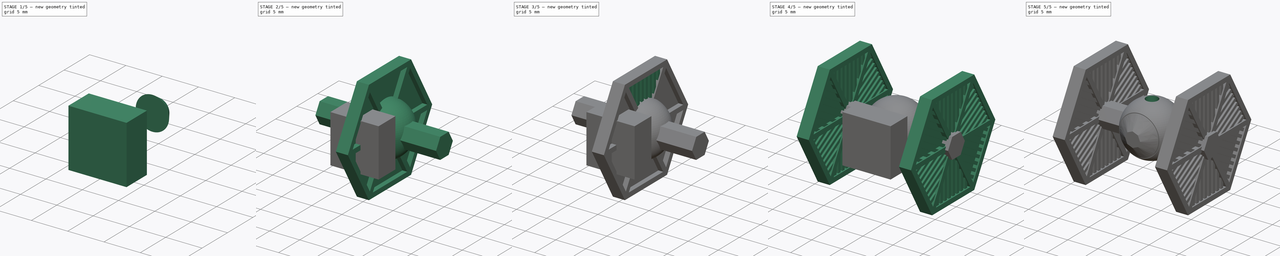
[diagram: build sequence overview — one tinted view per stage of 5, left to right]
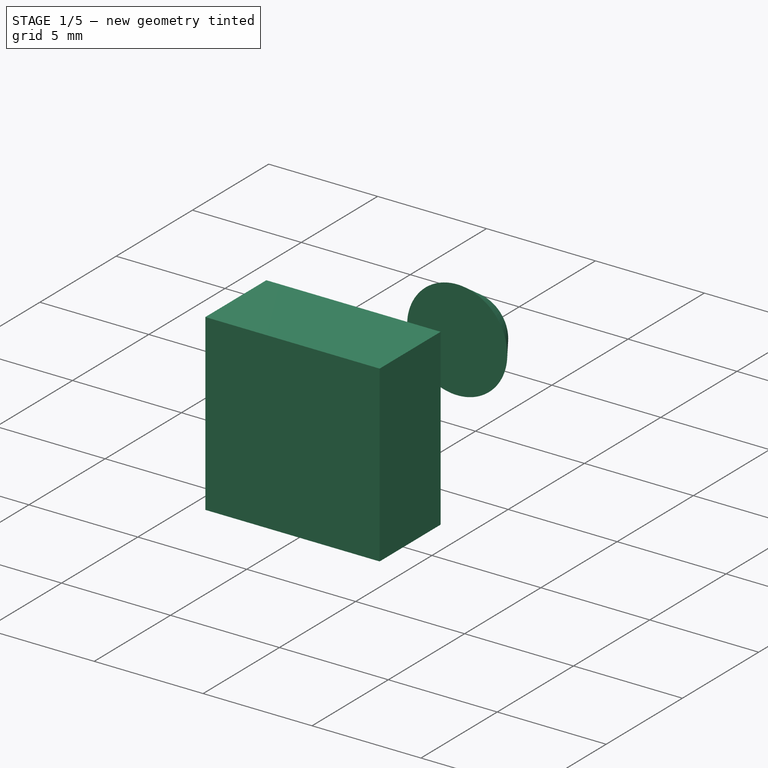
[diagram: stage 1 of 5 — iso view after this stage's code; geometry added in this stage tinted green]
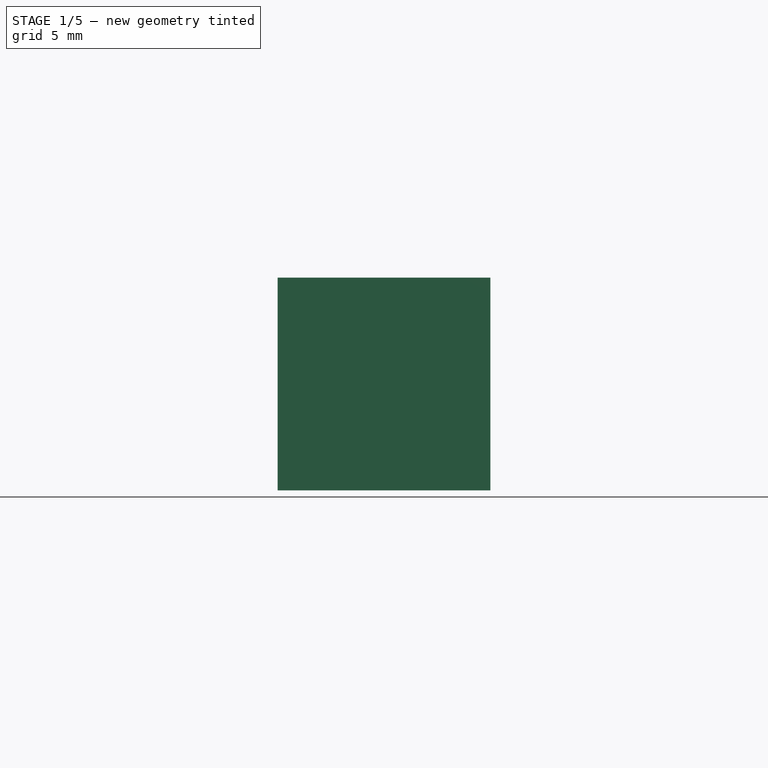
[diagram: stage 1 of 5 — front view after this stage's code; geometry added in this stage tinted green]
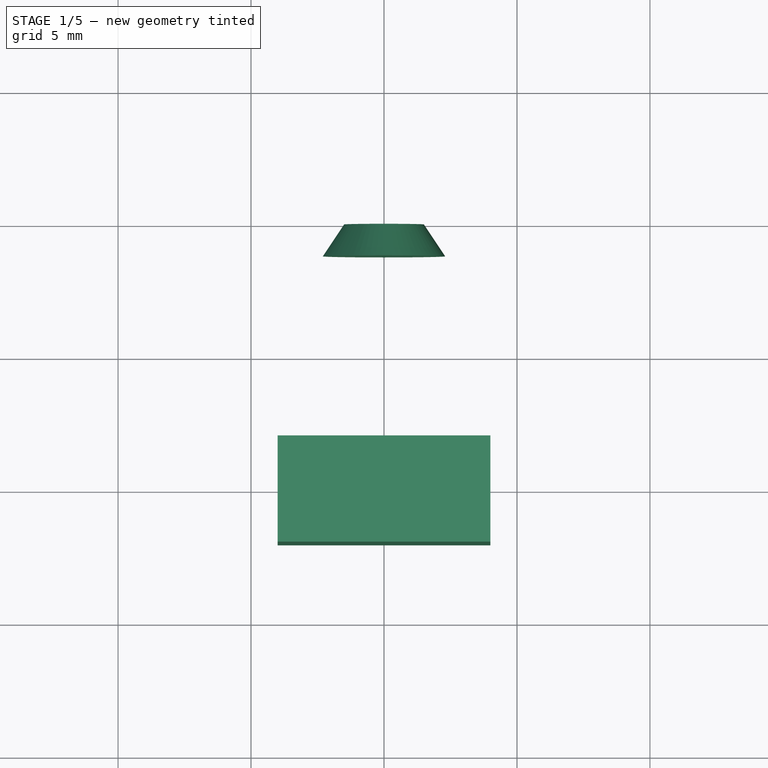
[diagram: stage 1 of 5 — top view after this stage's code; geometry added in this stage tinted green]
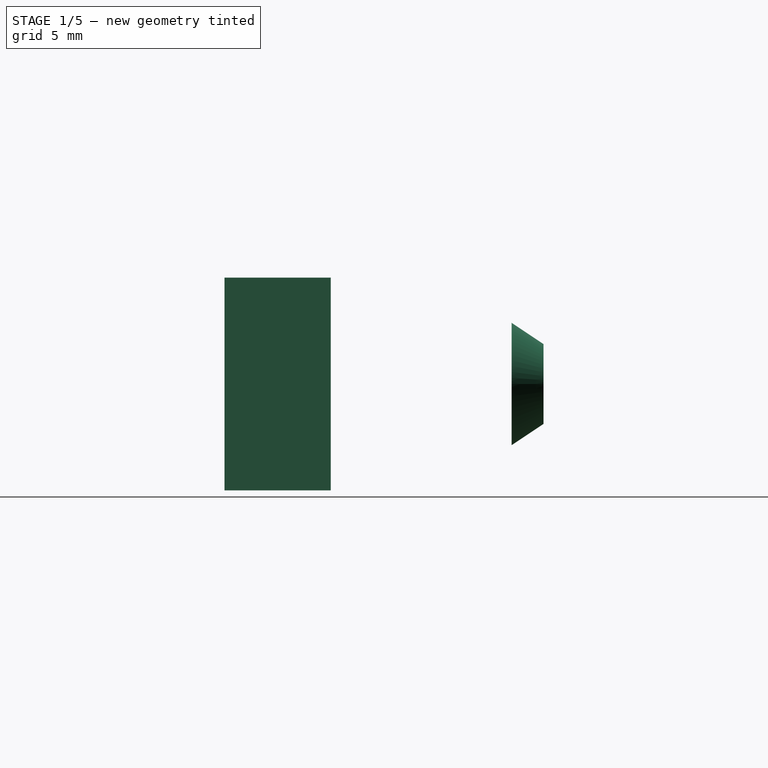
[diagram: stage 1 of 5 — right view after this stage's code; geometry added in this stage tinted green]
FCSTD DOCUMENT  (FreeCAD 0.18R16093 (Git))
Label: IKEA_TIE
License: All rights reserved
LicenseURL: http://en.wikipedia.org/wiki/All_rights_reserved
objects: PartDesign::Body×7, Sketcher::SketchObject×6, PartDesign::FeatureBase×6, Part::MultiFuse×5, Part::Extrusion×4, Part::Cylinder×2, Part::Mirroring×1, Part::Sphere×1, Part::Prism×1, Part::Loft×1, Part::Box×1, Part::Cut×1, Part::Cone×1
note: 37 computed .brp shape members not serialized (recipe doc carries the construction recipe); baked Part::Feature solids carry a one-line shape summary decoded from their .brp

FEATURE [Sketcher::SketchObject] Sketch004
  AttachmentOffset = pos=(0,0,5) rot=(0,0,1;0rad)
  MapMode = 5
  Placement = pos=(0,-5,-1.1e-15) rot=(1,0,0;1.5708rad)
  Support = -> [XZ_Plane]
  sketch-geometry (1):
    g0: Circle CenterX=0 CenterY=0 CenterZ=0 NormalX=0 NormalY=0 NormalZ=1 AngleXU=0 Radius=3.23001
  constraints (1):
    c: Coincident(g0,g-1)
FEATURE [Sketcher::SketchObject] Sketch005
  AttachmentOffset = pos=(0,0,6.5) rot=(0,0,1;0rad)
  MapMode = 5
  Placement = pos=(0,-6.5,-1.4e-15) rot=(1,0,0;1.5708rad)
  Support = -> [XZ_Plane]
  sketch-geometry (9):
    g0: LineSegment StartX=-0.878007 StartY=0.878007 StartZ=0 EndX=-1.24169 EndY=0 EndZ=0
    g1: LineSegment StartX=-1.24169 StartY=0 StartZ=0 EndX=-0.878007 EndY=-0.878007 EndZ=0
    g2: LineSegment StartX=-0.878007 StartY=-0.878007 StartZ=0 EndX=-1e-16 EndY=-1.24169 EndZ=0
    g3: LineSegment StartX=-1e-16 StartY=-1.24169 StartZ=0 EndX=0.878007 EndY=-0.878007 EndZ=0
    g4: LineSegment StartX=0.878007 StartY=-0.878007 StartZ=0 EndX=1.24169 EndY=0 EndZ=0
    g5: LineSegment StartX=1.24169 StartY=0 StartZ=0 EndX=0.878007 EndY=0.878007 EndZ=0
    g6: LineSegment StartX=0.878007 StartY=0.878007 StartZ=0 EndX=0 EndY=1.24169 EndZ=0
    g7: LineSegment StartX=0 StartY=1.24169 StartZ=0 EndX=-0.878007 EndY=0.878007 EndZ=0
    g8: Circle [constr] CenterX=0 CenterY=0 CenterZ=0 NormalX=0 NormalY=0 NormalZ=1 AngleXU=0 Radius=1.24169
  constraints (19):
    c: Coincident(g0,g1)
    c: Coincident(g1,g2)
    c: Coincident(g2,g3)
    c: Coincident(g3,g4)
    c: Coincident(g4,g5)
    c: Coincident(g5,g6)
    c: Coincident(g6,g7)
    c: Coincident(g7,g0)
    c: Equal(g0, g1-g7) x7
    c: PointOnObject(g0,g8)
    c: PointOnObject(g1,g8)
    c: PointOnObject(g2,g8)
    c: PointOnObject(g3,g8)
    c: PointOnObject(g4,g8)
    c: PointOnObject(g5,g8)
    c: PointOnObject(g6,g8)
    c: PointOnObject(g7,g8)
    c: Coincident(g8,g-1)
    c: PointOnObject(g6,g-2)
FEATURE [PartDesign::Body] Body
  Group = -> [Sketch,Sketch001,Sketch002,Sketch003,Sketch004,Sketch005]
  Origin = -> Origin
FEATURE [Part::Loft] Loft
  Closed = false
  MaxDegree = 5
  Ruled = false
  Sections = -> [Sketch004,Sketch005]
  Solid = true
FEATURE [Part::Extrusion] Extrude003
  Base = -> Sketch004
  Dir = (0,-1,-2e-16)
  DirMode = 2
  FaceMakerClass = Part::FaceMakerBullseye
  LengthFwd = 0
  LengthRev = 0.5
  Solid = true
  Symmetric = false
FEATURE [Part::Box] Box  label="Cube"
  AttacherType = Attacher::AttachEngine3D
  Height = 8
  Length = 8
  Placement = pos=(-4,-7,-4) rot=(0,0,1;0rad)
  Width = 4
FEATURE [PartDesign::FeatureBase] Clone005
  BaseFeature = -> Box
  Placement = pos=(-4,-7,-4) rot=(0,0,1;0rad)
FEATURE [Part::Cone] Cone
  Angle = 360
  AttacherType = Attacher::AttachEngine3D
  Height = 1.2
  Placement = pos=(0,5,2e-15) rot=(1,0,0;1.5708rad)
  Radius1 = 1.5
  Radius2 = 2.3
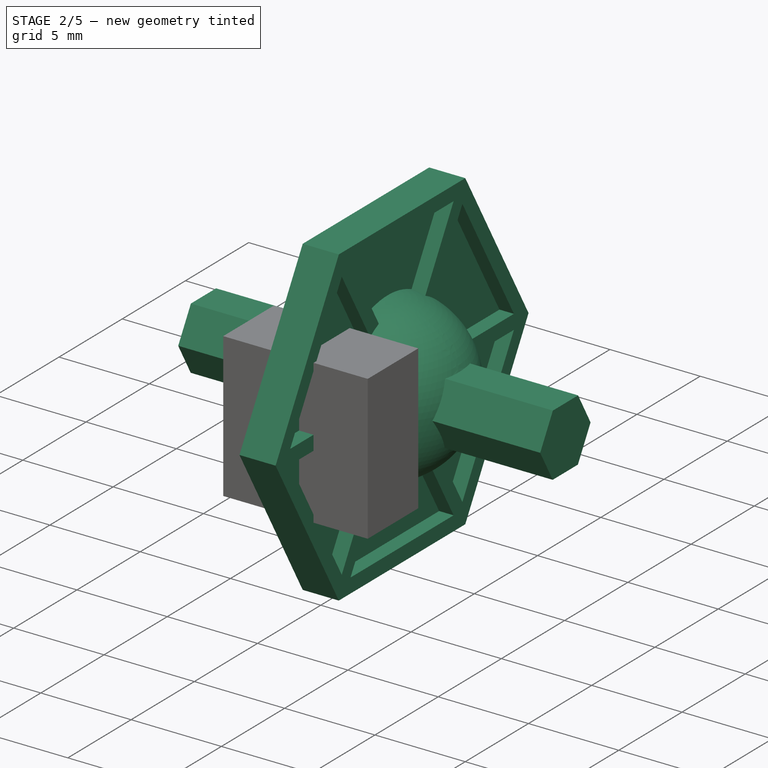
[diagram: stage 2 of 5 — iso view after this stage's code; geometry added in this stage tinted green]
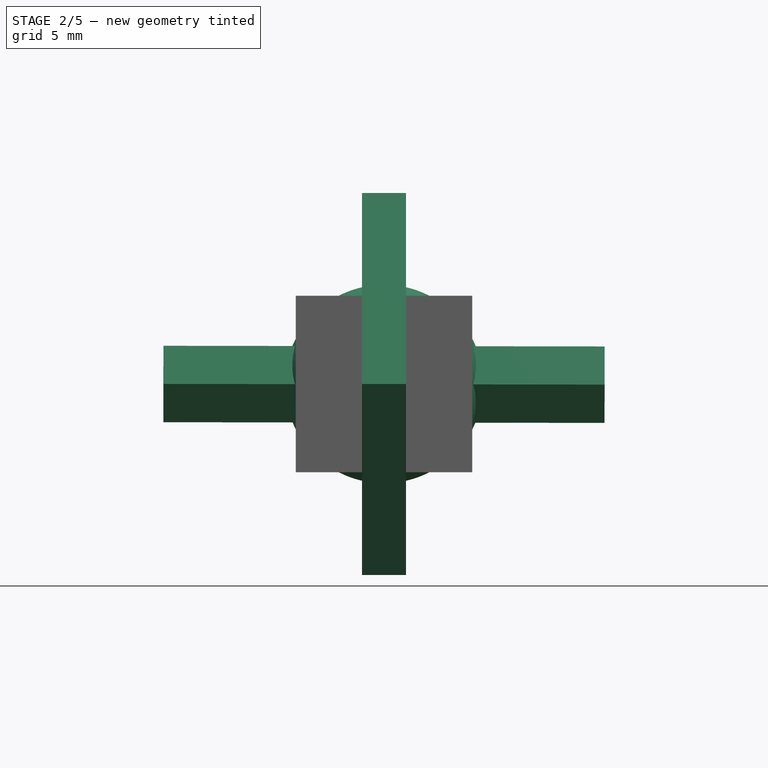
[diagram: stage 2 of 5 — front view after this stage's code; geometry added in this stage tinted green]
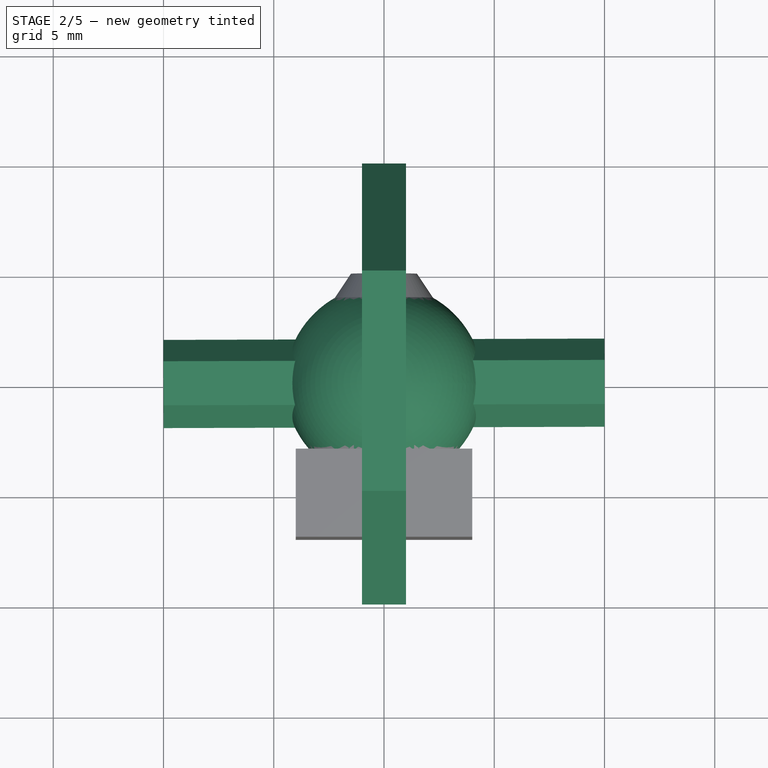
[diagram: stage 2 of 5 — top view after this stage's code; geometry added in this stage tinted green]
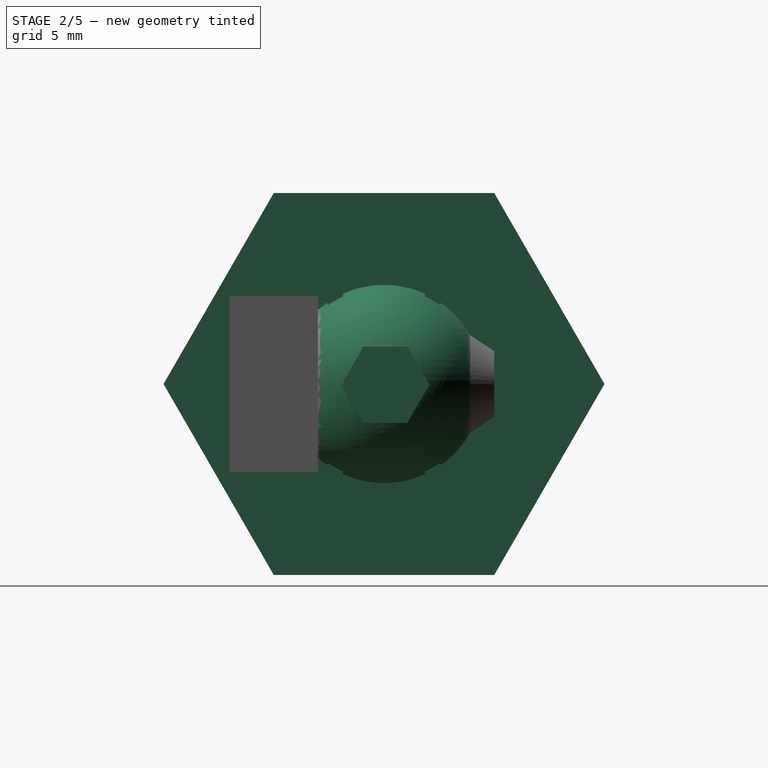
[diagram: stage 2 of 5 — right view after this stage's code; geometry added in this stage tinted green]
FEATURE [PartDesign::Body] Body005
  BaseFeature = -> Extrude
  Group = -> [Clone004]
  Origin = -> Origin005
  Placement = pos=(0,0,0) rot=(-1,0,0;1.0472rad)
  Tip = -> Clone004
FEATURE [Part::Extrusion] Extrude001
  Base = -> Sketch
  Dir = (1,-2e-16,3e-16)
  DirMode = 2
  FaceMakerClass = Part::FaceMakerBullseye
  LengthFwd = 1
  LengthRev = 1
  Solid = true
  Symmetric = false
FEATURE [Sketcher::SketchObject] Sketch003
  ExternalGeometry = -> [Sketch]
  MapMode = 5
  Placement = pos=(0,0,0) rot=(0.57735,0.57735,0.57735;2.0944rad)
  Support = -> [YZ_Plane]
  sketch-geometry (6):
    g0: LineSegment StartX=5 StartY=8.66025 StartZ=0 EndX=10 EndY=0 EndZ=0
    g1: LineSegment StartX=10 StartY=0 StartZ=0 EndX=5 EndY=-8.66025 EndZ=0
    g2: LineSegment StartX=5 StartY=-8.66025 StartZ=0 EndX=-5 EndY=-8.66025 EndZ=0
    g3: LineSegment StartX=-5 StartY=-8.66025 StartZ=0 EndX=-10 EndY=0 EndZ=0
    g4: LineSegment StartX=-10 StartY=0 StartZ=0 EndX=-5 EndY=8.66025 EndZ=0
    g5: LineSegment StartX=-5 StartY=8.66025 StartZ=0 EndX=5 EndY=8.66025 EndZ=0
  constraints (12):
    c: Coincident(g0,g-5)
    c: Coincident(g0,g1)
    c: Coincident(g1,g-6)
    c: Coincident(g1,g2)
    c: Coincident(g2,g-7)
    c: Coincident(g2,g3)
    c: Coincident(g3,g-8)
    c: Coincident(g3,g4)
    c: Coincident(g4,g-8)
    c: Coincident(g4,g5)
    c: Coincident(g5,g0)
    c: Coincident(g0,g-4)
FEATURE [Part::Extrusion] Extrude002
  Base = -> Sketch003
  Dir = (1,-2e-16,3e-16)
  DirMode = 2
  FaceMakerClass = Part::FaceMakerBullseye
  LengthFwd = 0.2
  LengthRev = 0.4
  Solid = true
  Symmetric = false
FEATURE [Part::Sphere] Sphere
  Angle1 = -90
  Angle2 = 90
  Angle3 = 360
  AttacherType = Attacher::AttachEngine3D
  Radius = 4.5
FEATURE [Part::Prism] Prism
  AttacherType = Attacher::AttachEngine3D
  Circumradius = 2
  Height = 20
  Placement = pos=(-10,0,0) rot=(0.579113,-0.576467,0.576467;4.18879rad)
  Polygon = 6
FEATURE [Part::MultiFuse] Fusion003
  Placement = pos=(0,1.9,0) rot=(0,0,1;0rad)
  Shapes = -> [Loft,Extrude003]
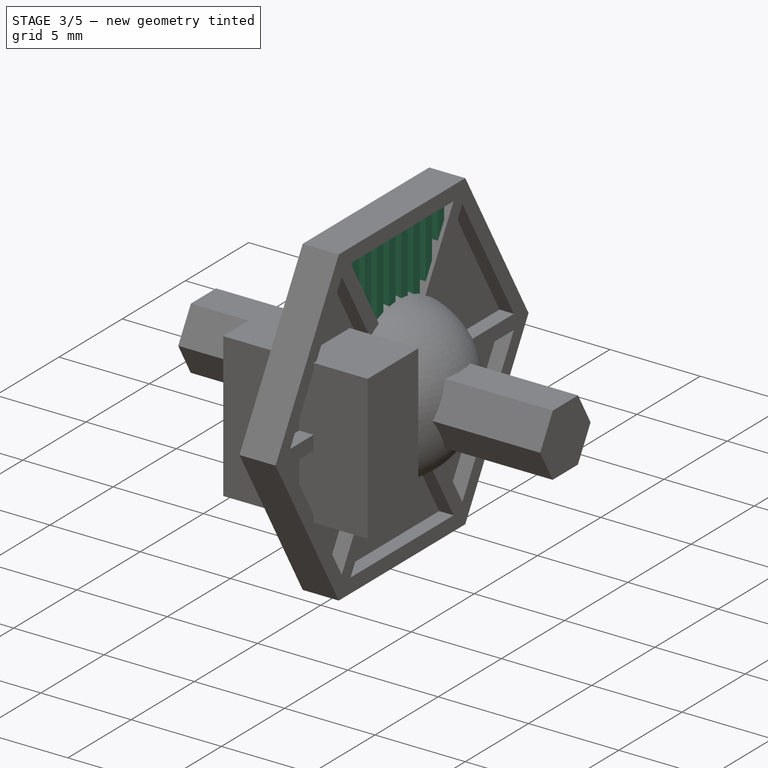
[diagram: stage 3 of 5 — iso view after this stage's code; geometry added in this stage tinted green]
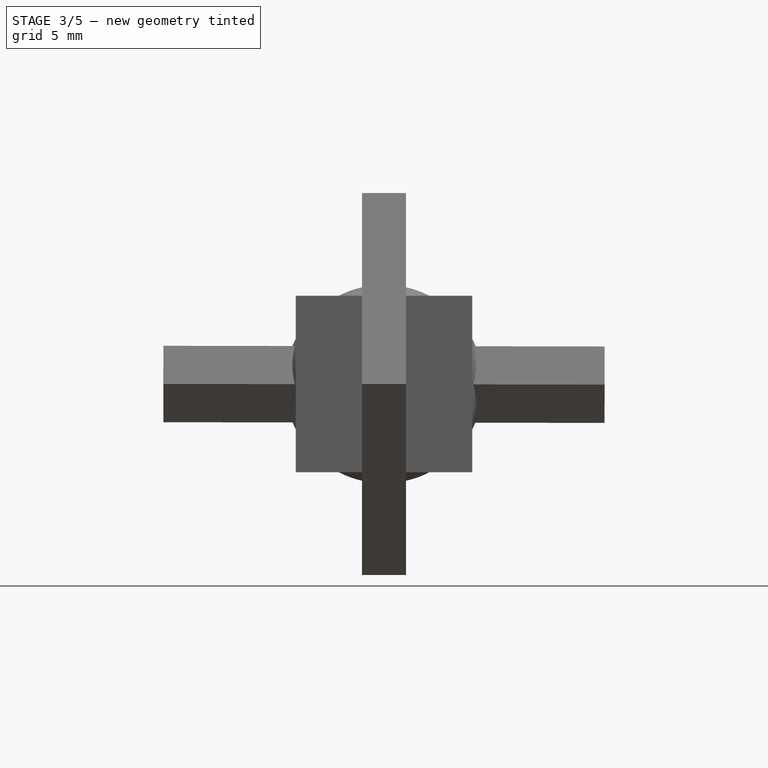
[diagram: stage 3 of 5 — front view after this stage's code; geometry added in this stage tinted green]
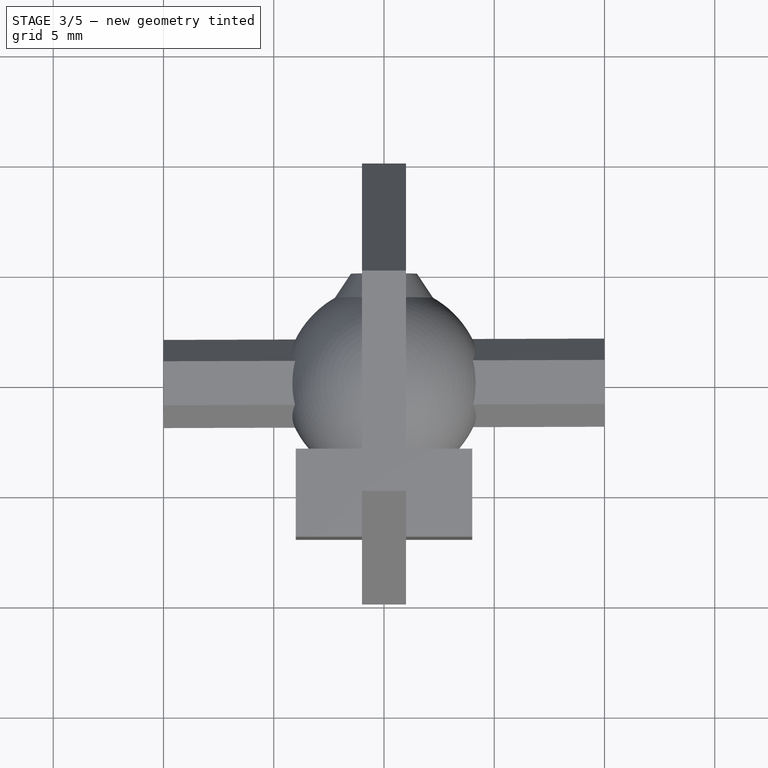
[diagram: stage 3 of 5 — top view after this stage's code; geometry added in this stage tinted green]
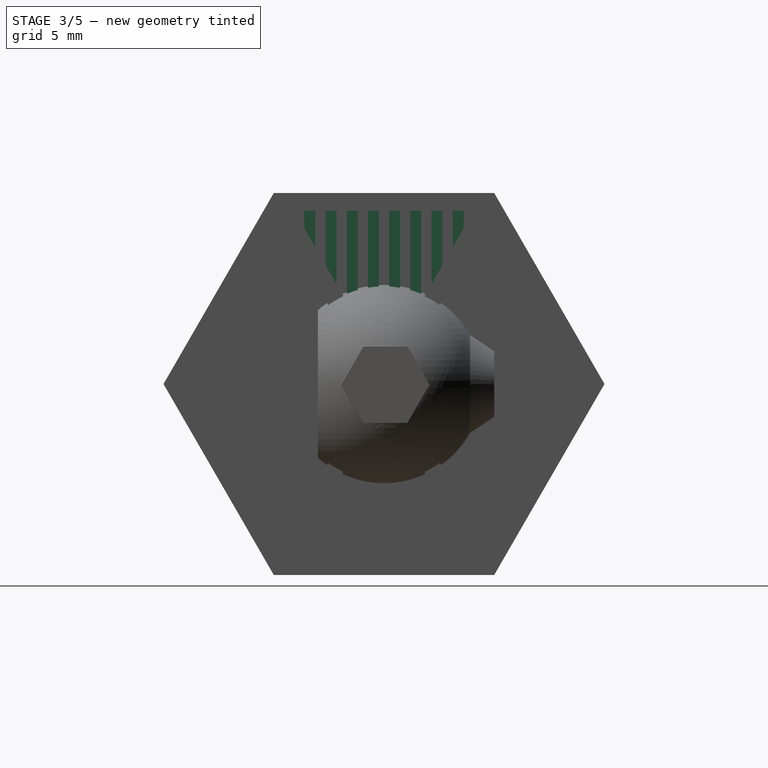
[diagram: stage 3 of 5 — right view after this stage's code; geometry added in this stage tinted green]
FEATURE [Sketcher::SketchObject] Sketch
  MapMode = 5
  Placement = pos=(0,0,0) rot=(0.57735,0.57735,0.57735;2.0944rad)
  Support = -> [YZ_Plane]
  sketch-geometry (32):
    g0: LineSegment StartX=5 StartY=-8.66025 StartZ=0 EndX=10 EndY=0 EndZ=0
    g1: LineSegment StartX=10 StartY=0 StartZ=0 EndX=5 EndY=8.66025 EndZ=0
    g2: LineSegment StartX=5 StartY=8.66025 StartZ=0 EndX=-5 EndY=8.66025 EndZ=0
    g3: LineSegment StartX=-5 StartY=8.66025 StartZ=0 EndX=-10 EndY=0 EndZ=0
    g4: LineSegment StartX=-10 StartY=0 StartZ=0 EndX=-5 EndY=-8.66025 EndZ=0
    g5: LineSegment StartX=-5 StartY=-8.66025 StartZ=0 EndX=5 EndY=-8.66025 EndZ=0
    g6: Circle [constr] CenterX=0 CenterY=0 CenterZ=0 NormalX=0 NormalY=0 NormalZ=1 AngleXU=0 Radius=10
    g7: LineSegment StartX=-4.07624 StartY=7.86025 StartZ=0 EndX=4.07624 EndY=7.86025 EndZ=0
    g8: LineSegment StartX=4.07624 StartY=7.86025 StartZ=0 EndX=-9e-16 EndY=0.8 EndZ=0
    g9: LineSegment StartX=-4.07624 StartY=7.86025 StartZ=0 EndX=-9e-16 EndY=0.8 EndZ=0
    g10: LineSegment StartX=0.69282 StartY=0.4 StartZ=0 EndX=4.76906 EndY=7.46025 EndZ=0
    g11: LineSegment StartX=4.76906 StartY=7.46025 StartZ=0 EndX=8.8453 EndY=0.4 EndZ=0
    g12: LineSegment StartX=8.8453 StartY=0.4 StartZ=0 EndX=0.69282 EndY=0.4 EndZ=0
    g13: LineSegment StartX=0.69282 StartY=-0.4 StartZ=0 EndX=8.8453 EndY=-0.4 EndZ=0
    g14: LineSegment StartX=8.8453 StartY=-0.4 StartZ=0 EndX=4.76906 EndY=-7.46025 EndZ=0
    g15: LineSegment StartX=4.76906 StartY=-7.46025 StartZ=0 EndX=0.69282 EndY=-0.4 EndZ=0
    g16: LineSegment StartX=7e-16 StartY=-0.8 StartZ=0 EndX=4.07624 EndY=-7.86025 EndZ=0
    g17: LineSegment StartX=4.07624 StartY=-7.86025 StartZ=0 EndX=-4.07624 EndY=-7.86025 EndZ=0
    g18: LineSegment StartX=-4.07624 StartY=-7.86025 StartZ=0 EndX=9e-16 EndY=-0.8 EndZ=0
    g19: LineSegment StartX=-0.69282 StartY=-0.4 StartZ=0 EndX=-4.76906 EndY=-7.46025 EndZ=0
    g20: LineSegment StartX=-4.76906 StartY=-7.46025 StartZ=0 EndX=-8.8453 EndY=-0.4 EndZ=0
    g21: LineSegment StartX=-8.8453 StartY=-0.4 StartZ=0 EndX=-0.69282 EndY=-0.4 EndZ=0
    g22: LineSegment StartX=-0.69282 StartY=0.4 StartZ=0 EndX=-8.8453 EndY=0.4 EndZ=0
    g23: LineSegment StartX=-8.8453 StartY=0.4 StartZ=0 EndX=-4.76906 EndY=7.46025 EndZ=0
    g24: LineSegment StartX=-4.76906 StartY=7.46025 StartZ=0 EndX=-0.69282 EndY=0.4 EndZ=0
    g25: Circle [constr] CenterX=0 CenterY=0 CenterZ=0 NormalX=0 NormalY=0 NormalZ=1 AngleXU=0 Radius=0.8
    g26: LineSegment [constr] StartX=-0.69282 StartY=0.4 StartZ=0 EndX=-7e-16 EndY=0.8 EndZ=0
    g27: LineSegment [constr] StartX=-6e-16 StartY=0.8 StartZ=0 EndX=0.69282 EndY=0.4 EndZ=0
    g28: LineSegment [constr] StartX=0.69282 StartY=0.4 StartZ=0 EndX=0.69282 EndY=-0.4 EndZ=0
    g29: LineSegment [constr] StartX=0.69282 StartY=-0.4 StartZ=0 EndX=7e-16 EndY=-0.8 EndZ=0
    g30: LineSegment [constr] StartX=7e-16 StartY=-0.8 StartZ=0 EndX=-0.69282 EndY=-0.4 EndZ=0
    g31: LineSegment [constr] StartX=-0.69282 StartY=-0.4 StartZ=0 EndX=-0.69282 EndY=0.4 EndZ=0
  constraints (84):
    c: Coincident(g0,g1)
    c: Coincident(g1,g2)
    c: Coincident(g2,g3)
    c: Coincident(g3,g4)
    c: Coincident(g4,g5)
    c: Coincident(g5,g0)
    c: Equal(g0, g1-g5) x5
    c: PointOnObject(g0,g6)
    c: PointOnObject(g1,g6)
    c: PointOnObject(g2,g6)
    c: PointOnObject(g3,g6)
    c: PointOnObject(g4,g6)
    c: PointOnObject(g5,g6)
    c: Coincident(g6,g-1)
    c: PointOnObject(g0,g-1)
    c: DistanceX(g3,g0) = 20
    c: Horizontal(g7)
    c: Coincident(g7,g8)
    c: Coincident(g10,g11)
    c: Coincident(g11,g12)
    c: Horizontal(g12)
    c: Horizontal(g13)
    c: Coincident(g13,g14)
    c: Coincident(g14,g15)
    c: Coincident(g16,g17)
    c: Horizontal(g17)
    c: Coincident(g17,g18)
    c: Coincident(g19,g20)
    c: Coincident(g20,g21)
    c: Horizontal(g21)
    c: Horizontal(g22)
    c: Coincident(g22,g23)
    c: Coincident(g23,g24)
    c: Parallel(g23,g14)
    c: Parallel(g20,g4)
    c: Parallel(g4,g11)
    c: Parallel(g24,g9)
    c: Parallel(g8,g10)
    c: Parallel(g15,g16)
    c: Vertical(g22,g20)
    c: Equal(g19,g18)
    c: Equal(g18,g16)
    c: Equal(g16,g15)
    c: Equal(g15,g13)
    c: Equal(g13,g12)
    c: Equal(g12,g10)
    c: Equal(g10,g8)
    c: Equal(g8,g9)
    c: Equal(g9,g24)
    c: Equal(g24,g22)
    c: Equal(g22,g21)
    c: Coincident(g9,g8)
    c: Coincident(g10,g12)
    c: Coincident(g7,g9)
    c: Coincident(g22,g24)
    c: Coincident(g19,g21)
    c: Coincident(g15,g13)
    c: Coincident(g25,g-1)
    c: PointOnObject(g10,g25)
    c: PointOnObject(g13,g25)
    c: PointOnObject(g16,g25)
    c: PointOnObject(g19,g25)
    c: PointOnObject(g22,g25)
    c: PointOnObject(g8,g25)
    c: Coincident(g22,g26)
    c: Coincident(g26,g8)
    c: Coincident(g26,g27)
    c: Coincident(g27,g10)
    c: Coincident(g27,g28)
    c: Coincident(g28,g13)
    c: Coincident(g28,g29)
    c: Coincident(g29,g16)
    c: Coincident(g29,g30)
    c: Coincident(g30,g19)
    c: Coincident(g30,g31)
    c: Coincident(g31,g26)
    c: Equal(g26,g27)
    c: Equal(g27,g28)
    c: Equal(g28,g29)
    c: Equal(g29,g30)
    c: Equal(g30,g31)
    c: Coincident(g18,g16)
    c: DistanceY(g13,g11) = 0.8
    c: DistanceY(g0,g16) = 0.8
FEATURE [Sketcher::SketchObject] Sketch001
  ExternalGeometry = -> [Sketch]
  MapMode = 5
  Placement = pos=(0,0,0) rot=(0.57735,0.57735,0.57735;2.0944rad)
  Support = -> [YZ_Plane]
  sketch-geometry (41):
    g0: LineSegment StartX=-3.61485 StartY=7.86025 StartZ=0 EndX=-3.61485 EndY=7.06111 EndZ=0
    g1: LineSegment StartX=-3.61485 StartY=7.06111 StartZ=0 EndX=-3.11485 EndY=6.19508 EndZ=0
    g2: LineSegment StartX=-3.11485 StartY=6.19508 StartZ=0 EndX=-3.11485 EndY=7.86025 EndZ=0
    g3: LineSegment StartX=-3.11485 StartY=7.86025 StartZ=0 EndX=-3.61485 EndY=7.86025 EndZ=0
    g4: LineSegment StartX=-2.65347 StartY=7.86025 StartZ=0 EndX=-2.65347 EndY=5.39594 EndZ=0
    g5: LineSegment StartX=-2.65347 StartY=5.39594 StartZ=0 EndX=-2.15347 EndY=4.52991 EndZ=0
    g6: LineSegment StartX=-2.15347 StartY=4.52991 StartZ=0 EndX=-2.15347 EndY=7.86025 EndZ=0
    g7: LineSegment StartX=-2.15347 StartY=7.86025 StartZ=0 EndX=-2.65347 EndY=7.86025 EndZ=0
    g8: LineSegment StartX=-1.69208 StartY=7.86025 StartZ=0 EndX=-1.69208 EndY=3.73077 EndZ=0
    g9: LineSegment StartX=-1.69208 StartY=3.73077 StartZ=0 EndX=-1.19208 EndY=2.86474 EndZ=0
    g10: LineSegment StartX=-1.19208 StartY=2.86474 StartZ=0 EndX=-1.19208 EndY=7.86025 EndZ=0
    g11: LineSegment StartX=-1.19208 StartY=7.86025 StartZ=0 EndX=-1.69208 EndY=7.86025 EndZ=0
    g12: LineSegment StartX=-0.730693 StartY=7.86025 StartZ=0 EndX=-0.730693 EndY=2.0656 EndZ=0
    g13: LineSegment StartX=-0.730693 StartY=2.0656 StartZ=0 EndX=-0.230693 EndY=1.19957 EndZ=0
    g14: LineSegment StartX=-0.230693 StartY=1.19957 StartZ=0 EndX=-0.230693 EndY=7.86025 EndZ=0
    g15: LineSegment StartX=-0.230693 StartY=7.86025 StartZ=0 EndX=-0.730693 EndY=7.86025 EndZ=0
    g16: LineSegment [constr] StartX=-0.730693 StartY=7.86025 StartZ=0 EndX=-1.19208 EndY=7.86025 EndZ=0
    g17: LineSegment [constr] StartX=-1.69208 StartY=7.86025 StartZ=0 EndX=-2.15347 EndY=7.86025 EndZ=0
    g18: LineSegment [constr] StartX=-2.65347 StartY=7.86025 StartZ=0 EndX=-3.11485 EndY=7.86025 EndZ=0
    g19: LineSegment [constr] StartX=-3.61485 StartY=7.86025 StartZ=0 EndX=-4.07624 EndY=7.86025 EndZ=0
    g20: LineSegment StartX=0.730693 StartY=7.86025 StartZ=0 EndX=0.230693 EndY=7.86025 EndZ=0
    g21: LineSegment StartX=0.230693 StartY=7.86025 StartZ=0 EndX=0.230693 EndY=1.19957 EndZ=0
    g22: LineSegment StartX=0.230693 StartY=1.19957 StartZ=0 EndX=0.730693 EndY=2.0656 EndZ=0
    g23: LineSegment StartX=0.730693 StartY=2.0656 StartZ=0 EndX=0.730693 EndY=7.86025 EndZ=0
    g24: LineSegment StartX=1.69208 StartY=7.86025 StartZ=0 EndX=1.19208 EndY=7.86025 EndZ=0
    g25: LineSegment StartX=1.19208 StartY=7.86025 StartZ=0 EndX=1.19208 EndY=2.86474 EndZ=0
    g26: LineSegment StartX=1.19208 StartY=2.86474 StartZ=0 EndX=1.69208 EndY=3.73077 EndZ=0
    g27: LineSegment StartX=1.69208 StartY=3.73077 StartZ=0 EndX=1.69208 EndY=7.86025 EndZ=0
    g28: LineSegment StartX=2.65347 StartY=7.86025 StartZ=0 EndX=2.15347 EndY=7.86025 EndZ=0
    g29: LineSegment StartX=2.15347 StartY=7.86025 StartZ=0 EndX=2.15347 EndY=4.52991 EndZ=0
    g30: LineSegment StartX=2.15347 StartY=4.52991 StartZ=0 EndX=2.65347 EndY=5.39594 EndZ=0
    g31: LineSegment StartX=2.65347 StartY=5.39594 StartZ=0 EndX=2.65347 EndY=7.86025 EndZ=0
    g32: LineSegment StartX=3.61485 StartY=7.86025 StartZ=0 EndX=3.11485 EndY=7.86025 EndZ=0
    g33: LineSegment StartX=3.11485 StartY=7.86025 StartZ=0 EndX=3.11485 EndY=6.19508 EndZ=0
    g34: LineSegment StartX=3.11485 StartY=6.19508 StartZ=0 EndX=3.61485 EndY=7.06111 EndZ=0
    g35: LineSegment StartX=3.61485 StartY=7.06111 StartZ=0 EndX=3.61485 EndY=7.86025 EndZ=0
    g36: LineSegment [constr] StartX=-0.230693 StartY=7.86025 StartZ=0 EndX=0.230693 EndY=7.86025 EndZ=0
    g37: LineSegment [constr] StartX=0.730693 StartY=7.86025 StartZ=0 EndX=1.19208 EndY=7.86025 EndZ=0
    g38: LineSegment [constr] StartX=1.69208 StartY=7.86025 StartZ=0 EndX=2.15347 EndY=7.86025 EndZ=0
    g39: LineSegment [constr] StartX=2.65347 StartY=7.86025 StartZ=0 EndX=3.11485 EndY=7.86025 EndZ=0
    g40: LineSegment [constr] StartX=3.61485 StartY=7.86025 StartZ=0 EndX=4.07624 EndY=7.86025 EndZ=0
  constraints (117):
    c: PointOnObject(g0,g-3)
    c: PointOnObject(g0,g-4)
    c: Vertical(g0)
    c: Coincident(g0,g1)
    c: PointOnObject(g1,g-4)
    c: Coincident(g1,g2)
    c: PointOnObject(g2,g-3)
    c: Coincident(g2,g3)
    c: Coincident(g3,g0)
    c: Vertical(g2)
    c: PointOnObject(g4,g-3)
    c: PointOnObject(g4,g-4)
    c: Coincident(g4,g5)
    c: PointOnObject(g5,g-4)
    c: Coincident(g5,g6)
    c: PointOnObject(g6,g-3)
    c: Coincident(g6,g7)
    c: Coincident(g7,g4)
    c: PointOnObject(g8,g-3)
    c: PointOnObject(g8,g-4)
    c: Coincident(g8,g9)
    c: PointOnObject(g9,g-4)
    c: Coincident(g9,g10)
    c: PointOnObject(g10,g-3)
    c: Coincident(g10,g11)
    c: Coincident(g11,g8)
    c: Vertical(g4)
    c: Vertical(g6)
    c: Vertical(g8)
    c: Vertical(g10)
    c: DistanceX(g3,g3) = 0.5
    c: Equal(g3,g7)
    c: Equal(g11,g3)
    c: PointOnObject(g12,g-3)
    c: Vertical(g12)
    c: Coincident(g12,g13)
    c: PointOnObject(g13,g-4)
    c: Coincident(g13,g14)
    c: PointOnObject(g14,g-3)
    c: Vertical(g14)
    c: Coincident(g14,g15)
    c: Coincident(g15,g12)
    c: PointOnObject(g12,g-4)
    c: Equal(g15,g3)
    c: Coincident(g16,g12)
    c: Coincident(g16,g10)
    c: Coincident(g17,g8)
    c: Coincident(g17,g6)
    c: Coincident(g18,g4)
    c: Coincident(g18,g2)
    c: Coincident(g19,g0)
    c: Coincident(g19,g-4)
    c: Equal(g19,g18)
    c: Equal(g18,g17)
    c: Equal(g17,g16)
    c: Coincident(g20,g21)
    c: Coincident(g21,g22)
    c: Coincident(g22,g23)
    c: Coincident(g23,g20)
    c: Vertical(g21)
    c: Vertical(g23)
    c: Coincident(g24,g25)
    c: Coincident(g25,g26)
    c: Coincident(g26,g27)
    c: Coincident(g27,g24)
    c: Vertical(g25)
    c: Vertical(g27)
    c: Coincident(g28,g29)
    c: Coincident(g29,g30)
    c: Coincident(g30,g31)
    c: Coincident(g31,g28)
    c: Vertical(g29)
    c: Vertical(g31)
    c: Coincident(g32,g33)
    c: Coincident(g33,g34)
    c: Coincident(g34,g35)
    c: Coincident(g35,g32)
    c: Vertical(g33)
    c: Vertical(g35)
    c: PointOnObject(g22,g-5)
    c: PointOnObject(g21,g-5)
    c: PointOnObject(g26,g-5)
    c: PointOnObject(g25,g-5)
    c: PointOnObject(g30,g-5)
    c: PointOnObject(g29,g-5)
    c: PointOnObject(g34,g-5)
    c: PointOnObject(g33,g-5)
    c: PointOnObject(g20,g-3)
    c: PointOnObject(g20,g-3)
    c: PointOnObject(g24,g-3)
    c: PointOnObject(g24,g-3)
    c: PointOnObject(g28,g-3)
    c: PointOnObject(g28,g-3)
    c: PointOnObject(g32,g-3)
    c: PointOnObject(g32,g-3)
    c: Equal(g20,g24)
    c: Equal(g24,g28)
    c: Equal(g28,g32)
    c: Equal(g32,g3)
    c: Coincident(g36,g20)
    c: Coincident(g37,g20)
    c: Coincident(g37,g24)
    c: Coincident(g38,g24)
    c: Coincident(g38,g28)
    c: Coincident(g39,g28)
    c: Coincident(g39,g32)
    c: Coincident(g40,g32)
    c: Coincident(g40,g-5)
    c: Equal(g36,g37)
    c: Equal(g37,g38)
    c: Equal(g38,g39)
    c: Equal(g39,g40)
    c: Coincident(g14,g36)
    c: Equal(g16,g17)
    c: Equal(g17,g18)
    c: Equal(g18,g19)
    c: Equal(g19,g36)
FEATURE [Sketcher::SketchObject] Sketch002
  ExternalGeometry = -> [Sketch]
  MapMode = 5
  Placement = pos=(0,0,0) rot=(0.57735,0.57735,0.57735;2.0944rad)
  Support = -> [YZ_Plane]
  sketch-geometry (4):
    g0: LineSegment StartX=7.69947 StartY=2.38463 StartZ=0 EndX=8.02252 EndY=1.82509 EndZ=0
    g1: LineSegment StartX=8.02252 StartY=1.82509 StartZ=0 EndX=5.55419 EndY=0.4 EndZ=0
    g2: LineSegment StartX=5.55419 StartY=0.4 StartZ=0 EndX=4.262 EndY=0.4 EndZ=0
    g3: LineSegment StartX=4.262 StartY=0.4 StartZ=0 EndX=7.69947 EndY=2.38463 EndZ=0
  constraints (10):
    c: Coincident(g0,g1)
    c: Coincident(g1,g2)
    c: Coincident(g2,g3)
    c: Coincident(g3,g0)
    c: PointOnObject(g0,g-3)
    c: PointOnObject(g0,g-3)
    c: PointOnObject(g2,g-4)
    c: PointOnObject(g1,g-4)
    c: Perpendicular(g-3,g1)
    c: Parallel(g3,g1)
FEATURE [Part::Extrusion] Extrude
  Base = -> Sketch001
  Dir = (1,-2e-16,3e-16)
  DirMode = 2
  FaceMakerClass = Part::FaceMakerBullseye
  LengthFwd = 0.8
  LengthRev = 0.8
  Solid = true
  Symmetric = false
FEATURE [PartDesign::Body] Body002
  BaseFeature = -> Extrude
  Group = -> [Clone001]
  Origin = -> Origin002
  Placement = pos=(0,0,0) rot=(1,0,0;2.0944rad)
  Tip = -> Clone001
FEATURE [PartDesign::FeatureBase] Clone002
  BaseFeature = -> Extrude
FEATURE [PartDesign::Body] Body003
  BaseFeature = -> Extrude
  Group = -> [Clone002]
  Origin = -> Origin003
  Placement = pos=(0,0,0) rot=(1,0,0;3.14159rad)
  Tip = -> Clone002
FEATURE [PartDesign::FeatureBase] Clone003
  BaseFeature = -> Extrude
FEATURE [PartDesign::Body] Body004
  BaseFeature = -> Extrude
  Group = -> [Clone003]
  Origin = -> Origin004
  Placement = pos=(0,0,0) rot=(1,0,0;4.18879rad)
  Tip = -> Clone003
FEATURE [PartDesign::FeatureBase] Clone004
  BaseFeature = -> Extrude
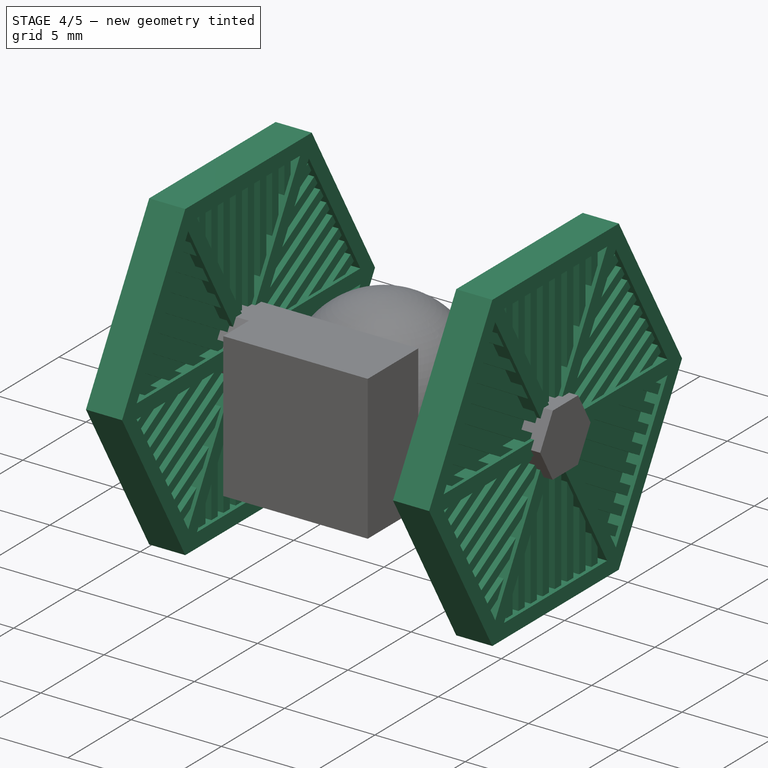
[diagram: stage 4 of 5 — iso view after this stage's code; geometry added in this stage tinted green]
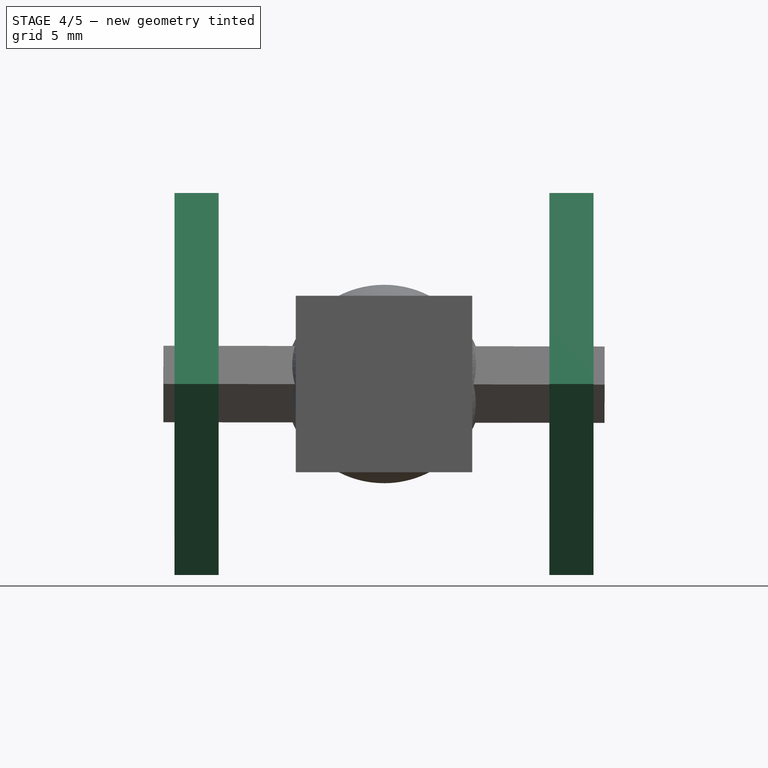
[diagram: stage 4 of 5 — front view after this stage's code; geometry added in this stage tinted green]
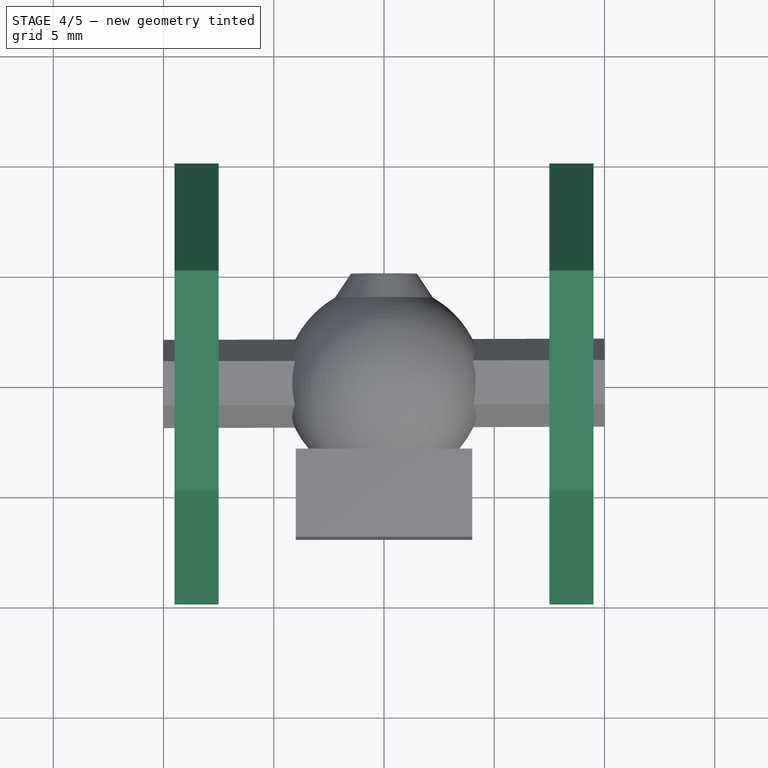
[diagram: stage 4 of 5 — top view after this stage's code; geometry added in this stage tinted green]
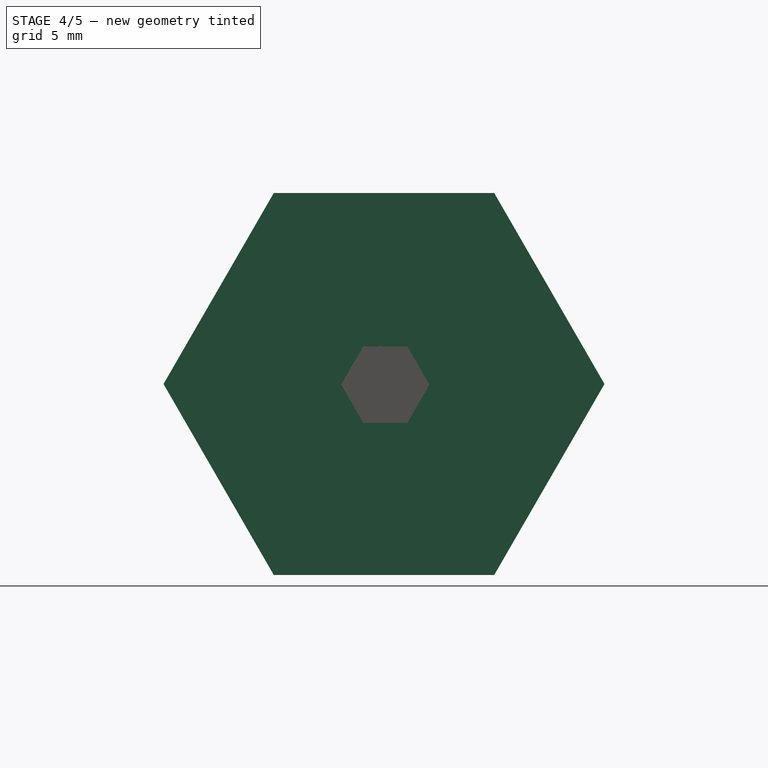
[diagram: stage 4 of 5 — right view after this stage's code; geometry added in this stage tinted green]
FEATURE [PartDesign::FeatureBase] Clone
  BaseFeature = -> Extrude
FEATURE [PartDesign::Body] Body001
  BaseFeature = -> Extrude
  Group = -> [Clone]
  Origin = -> Origin001
  Placement = pos=(0,0,0) rot=(1,0,0;1.0472rad)
  Tip = -> Clone
FEATURE [PartDesign::FeatureBase] Clone001
  BaseFeature = -> Extrude
FEATURE [Part::MultiFuse] Fusion  label="wing"
  Placement = pos=(8.5,0,0) rot=(0,0,1;0rad)
  Shapes = -> [Extrude,Body002,Body001,Extrude002,Body003,Body004,Body005,Extrude001]
FEATURE [Part::Mirroring] Part__Mirroring  label="wing (Mirror #1)"
  Base = (0,0,0)
  Normal = (1,0,0)
  Source = -> Fusion
FEATURE [Part::MultiFuse] Fusion002
  Shapes = -> [Part__Mirroring,Fusion,Sphere,Prism]
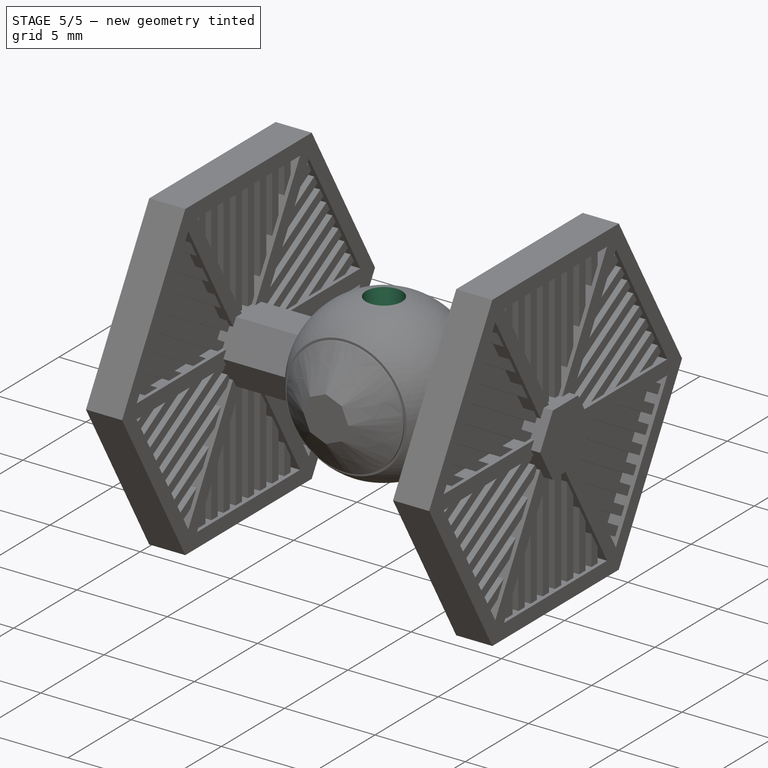
[diagram: stage 5 of 5 — iso view after this stage's code; geometry added in this stage tinted green]
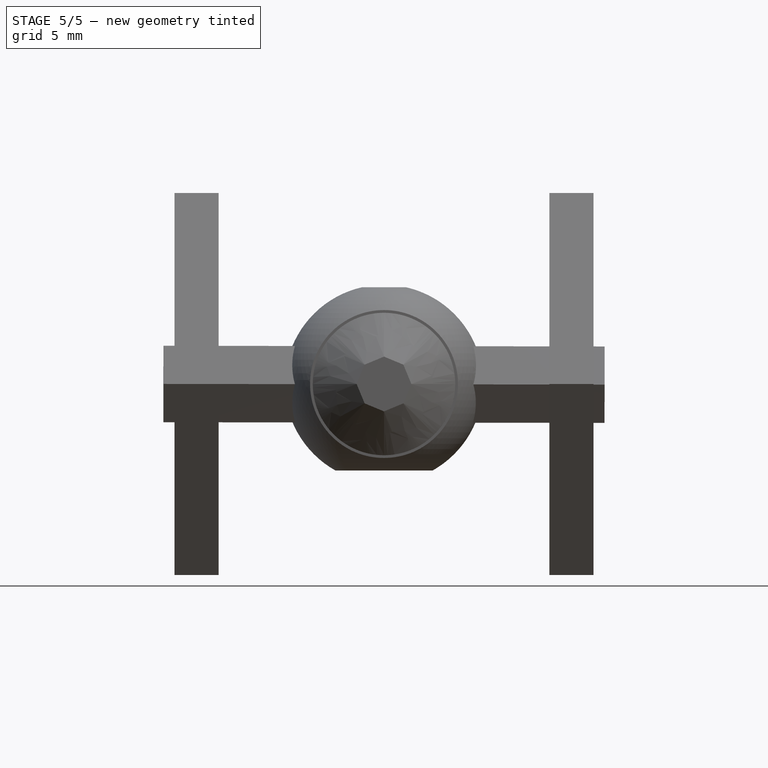
[diagram: stage 5 of 5 — front view after this stage's code; geometry added in this stage tinted green]
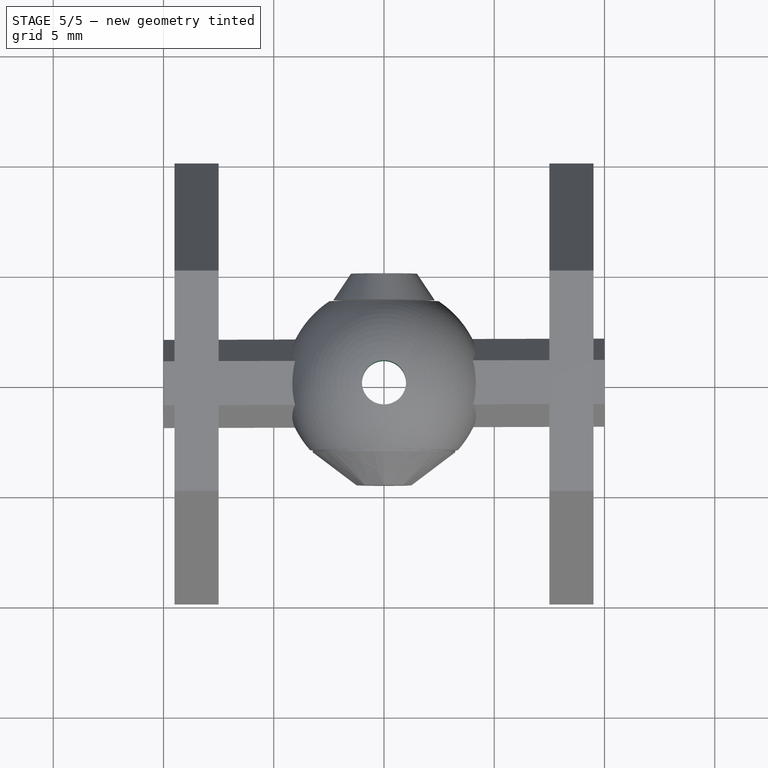
[diagram: stage 5 of 5 — top view after this stage's code; geometry added in this stage tinted green]
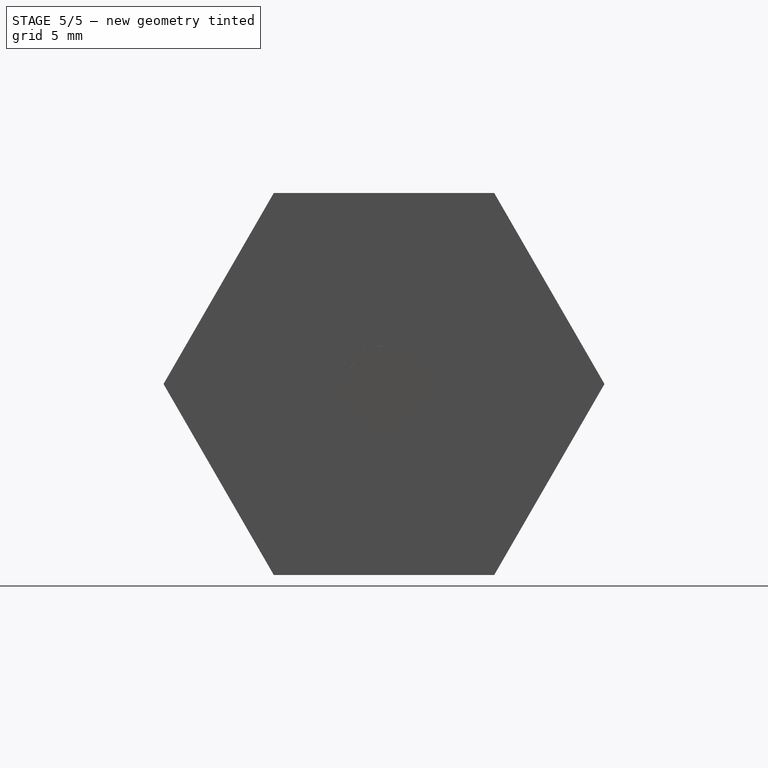
[diagram: stage 5 of 5 — right view after this stage's code; geometry added in this stage tinted green]
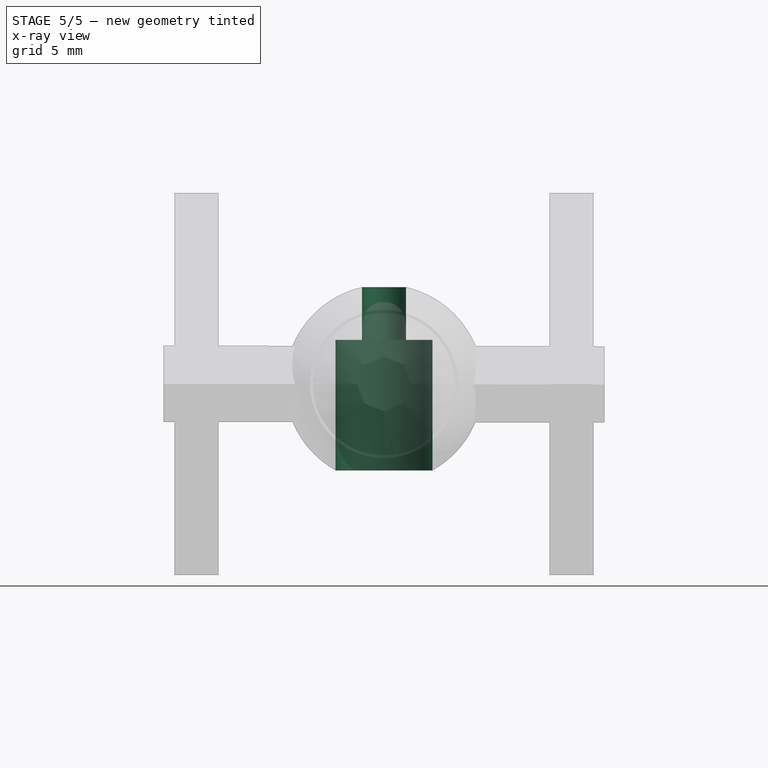
[diagram: stage 5 of 5 — x-ray composite at the front view; earlier geometry ghosted, this stage's added geometry solid]
FEATURE [Part::Cylinder] Cylinder
  Angle = 360
  AttacherType = Attacher::AttachEngine3D
  Height = 10
  Radius = 1
FEATURE [Part::Cylinder] Cylinder001
  Angle = 360
  AttacherType = Attacher::AttachEngine3D
  Height = 10
  Placement = pos=(0,0,-8) rot=(0,0,1;1.5708rad)
  Radius = 2.2
FEATURE [PartDesign::Body] Body006
  Group = -> [Clone005]
  Origin = -> Origin006
  Placement = pos=(0,10.75,0) rot=(0,0,1;0rad)
  Tip = -> Clone005
FEATURE [Part::MultiFuse] Fusion001  label="hole"
  Shapes = -> [Cylinder,Cylinder001,Box,Body006]
FEATURE [Part::Cut] Cut
  Base = -> Fusion002
  Tool = -> Fusion001
FEATURE [Part::MultiFuse] Fusion004
  Shapes = -> [Cone,Fusion003,Cut]
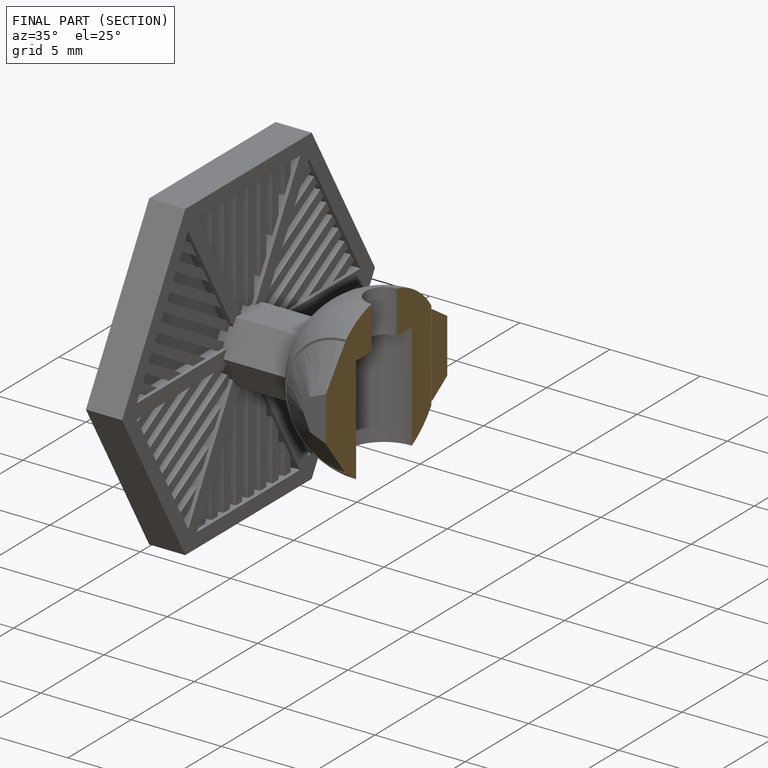
[diagram: finished part — half-section view (interior)]
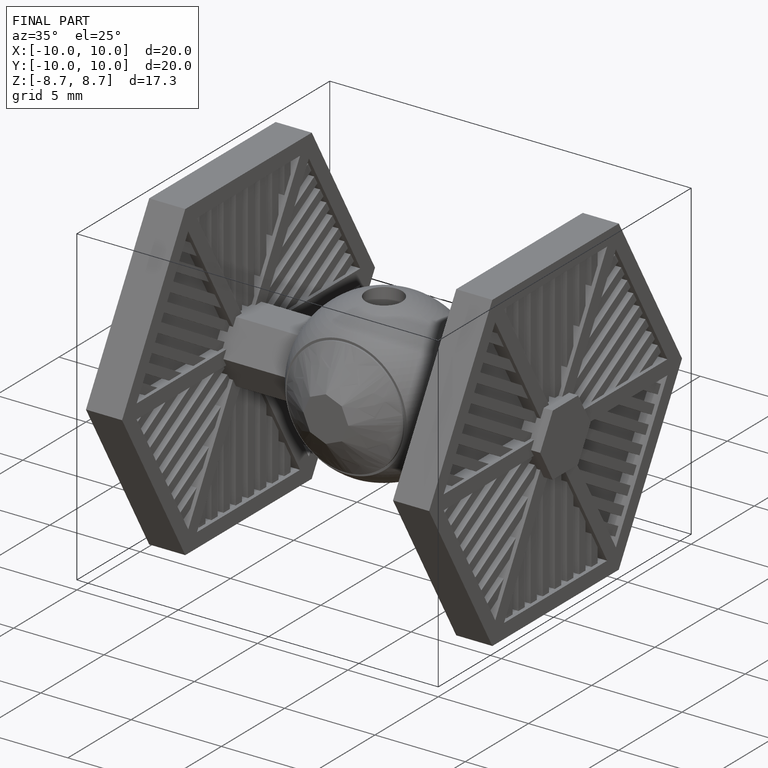
[diagram: finished part — iso view with bounding-box wireframe]
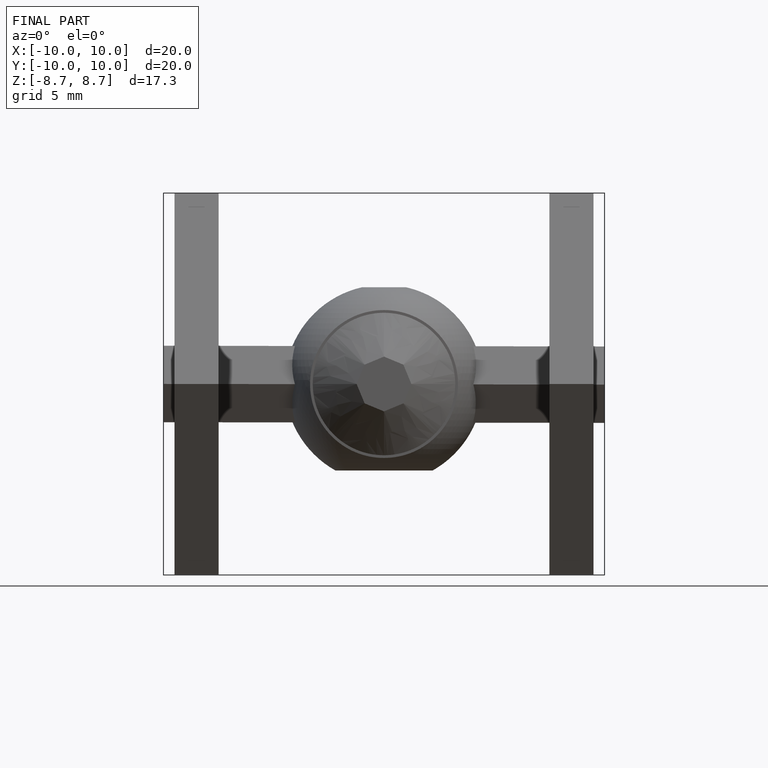
[diagram: finished part — front view with bounding-box wireframe]
